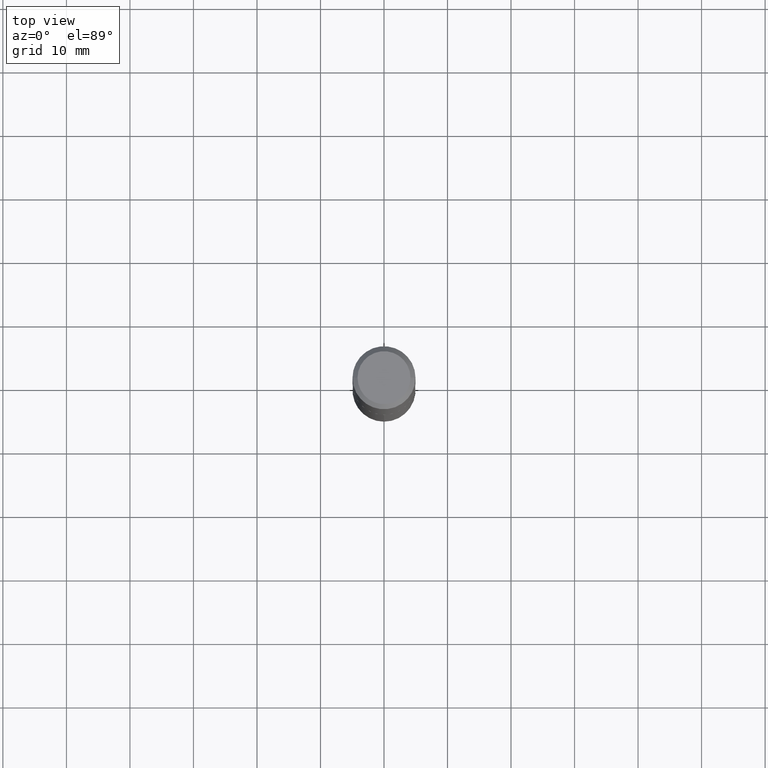
[diagram: clean part render]
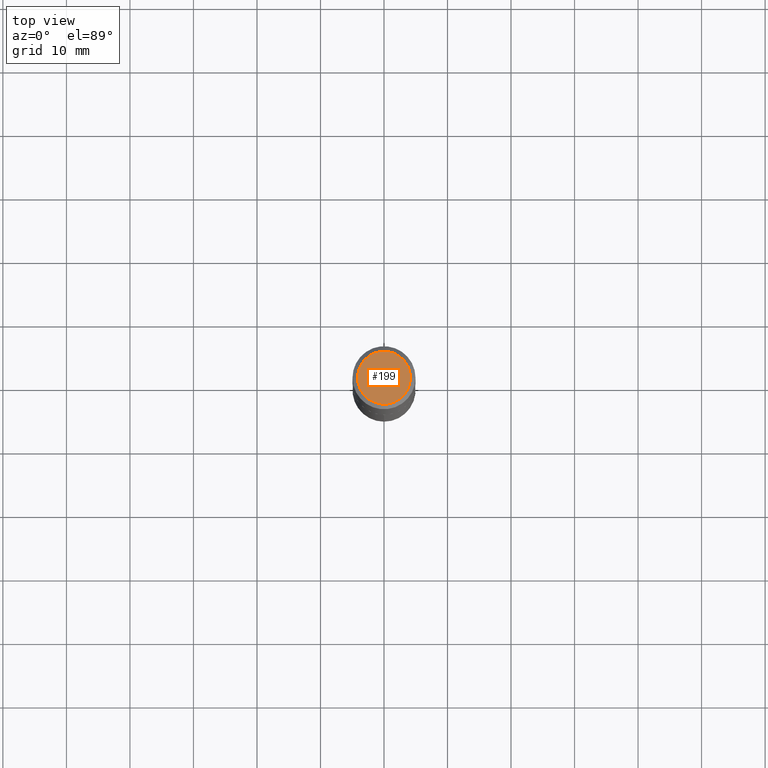
[diagram: same view with one face highlighted and labeled with its STEP entity id]
A machine part, top view. The second image highlights one B-rep face of the part: STEP entity #199.
In plain terms, the highlighted planar face has unit normal (0, -0, -1).
Its self-contained STEP definition (entity closure, byte-faithful):
#9 = CIRCLE ( 'NONE', #95, 0.1640500000000000014 ) ;
#16 = CIRCLE ( 'NONE', #160, 0.1640500000000000014 ) ;
#45 = EDGE_LOOP ( 'NONE', ( #65, #127 ) ) ;
#63 = DIRECTION ( 'NONE',  ( -2.445468806185136597E-29, 3.491481338843145583E-15, 1.000000000000000000 ) ) ;
#65 = ORIENTED_EDGE ( 'NONE', *, *, #159, .T. ) ;
#95 = AXIS2_PLACEMENT_3D ( 'NONE', #229, #120, #147 ) ;
#120 = DIRECTION ( 'NONE',  ( -2.445468806185136597E-29, 3.491481338843145583E-15, 1.000000000000000000 ) ) ;
#127 = ORIENTED_EDGE ( 'NONE', *, *, #299, .T. ) ;
#128 = AXIS2_PLACEMENT_3D ( 'NONE', #154, #177, #386 ) ;
#147 = DIRECTION ( 'NONE',  ( 1.000000000000000000, -6.982962677686266711E-15, 4.876144440966847435E-29 ) ) ;
#153 = CARTESIAN_POINT ( 'NONE',  ( -0.1640500000000000014, 1.200109423193855424E-15, 9.552245033267324686E-19 ) ) ;
#154 = CARTESIAN_POINT ( 'NONE',  ( -1.167985862904636054E-47, 1.667574263899818204E-33, 4.776122516674673095E-19 ) ) ;
#159 = EDGE_CURVE ( 'NONE', #271, #209, #9, .T. ) ;
#160 = AXIS2_PLACEMENT_3D ( 'NONE', #272, #63, #358 ) ;
#177 = DIRECTION ( 'NONE',  ( 2.438088387897960049E-29, -3.491481338843145188E-15, -1.000000000000000000 ) ) ;
#178 = FACE_OUTER_BOUND ( 'NONE', #45, .T. ) ;
#199 = ADVANCED_FACE ( 'NONE', ( #178 ), #342, .F. ) ;
#209 = VERTEX_POINT ( 'NONE', #293 ) ;
#229 = CARTESIAN_POINT ( 'NONE',  ( -2.335971725809272108E-47, 3.335148527799636409E-33, 9.552245033349346191E-19 ) ) ;
#271 = VERTEX_POINT ( 'NONE', #153 ) ;
#272 = CARTESIAN_POINT ( 'NONE',  ( -2.335971725809272108E-47, 3.335148527799636409E-33, 9.552245033349346191E-19 ) ) ;
#293 = CARTESIAN_POINT ( 'NONE',  ( 0.1640500000000000014, -1.287214373669024480E-15, 9.552245033434404887E-19 ) ) ;
#299 = EDGE_CURVE ( 'NONE', #209, #271, #16, .T. ) ;
#342 = PLANE ( 'NONE',  #128 ) ;
#358 = DIRECTION ( 'NONE',  ( 1.000000000000000000, -6.982962677686266711E-15, 4.876144440966847435E-29 ) ) ;
#386 = DIRECTION ( 'NONE',  ( -1.000000000000000000, 6.982962677686265922E-15, -4.876176775795935793E-29 ) ) ;